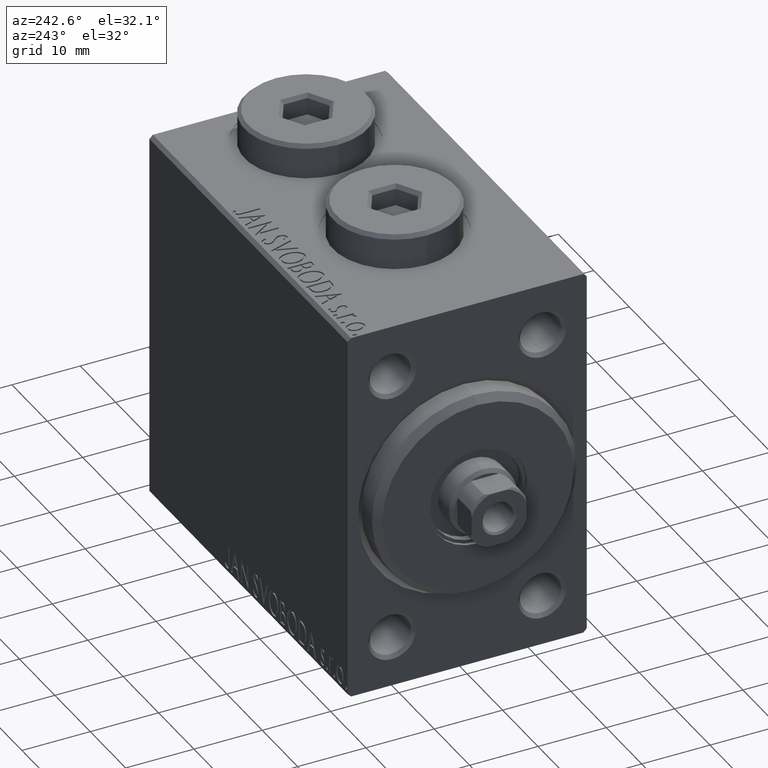
[diagram: clean part render]
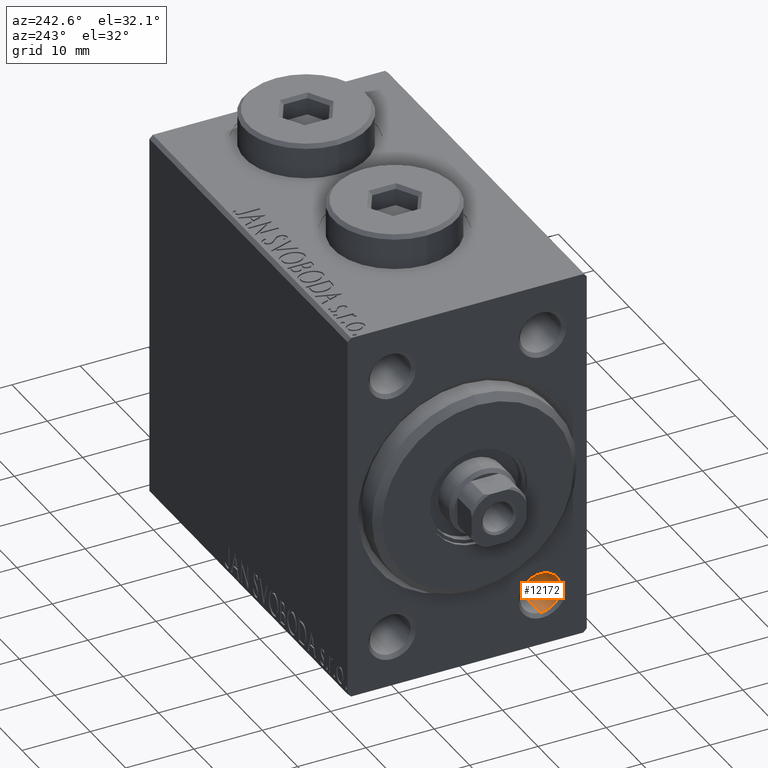
[diagram: same view with one face highlighted and labeled with its STEP entity id]
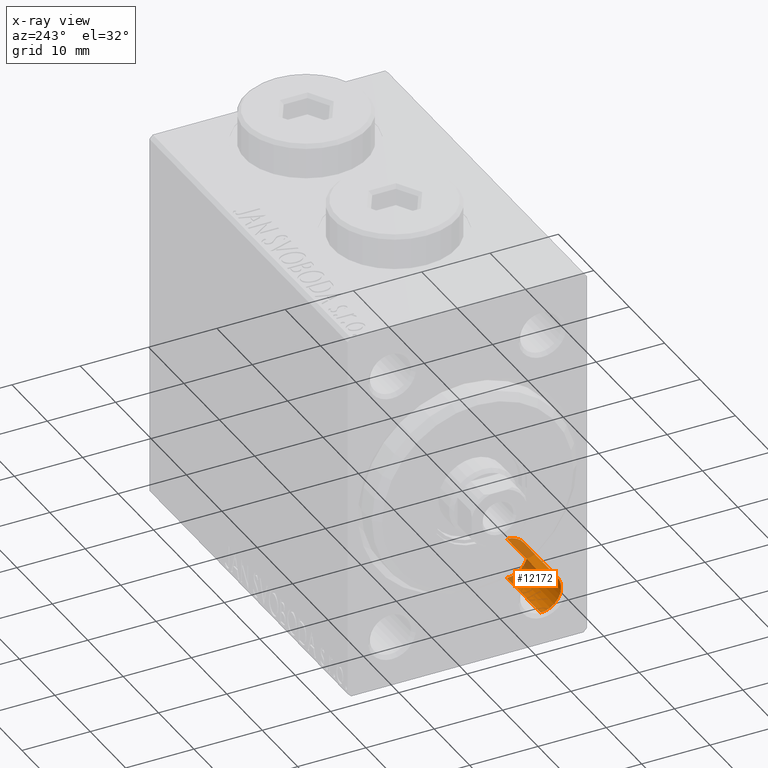
[diagram: x-ray of the same camera — body ghosted, the highlighted face saturated]
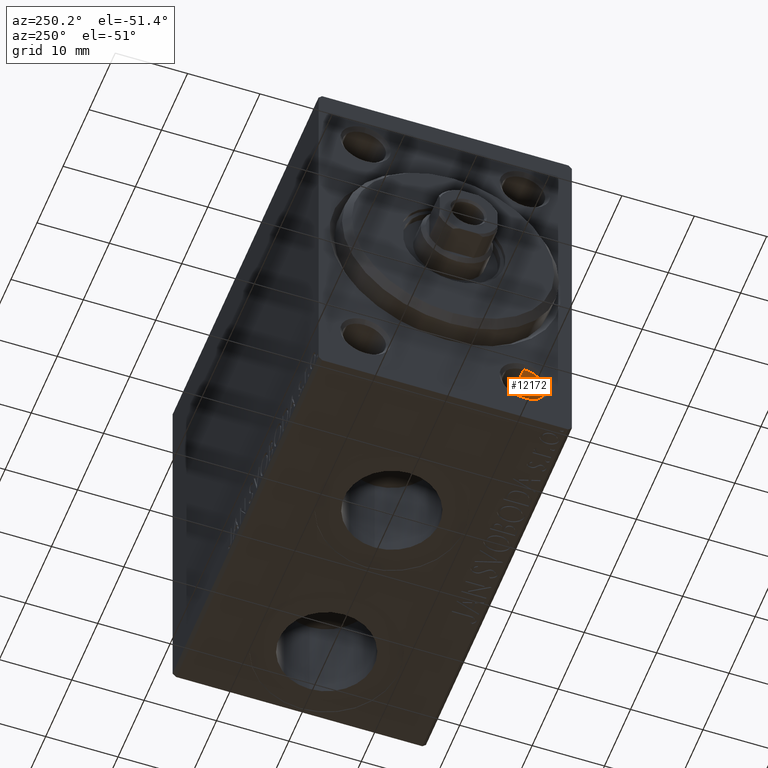
[diagram: same view with one face highlighted and labeled with its STEP entity id]
A machine part, auxiliary view. The second image highlights one B-rep face of the part: STEP entity #12172.
The next image is the same camera in x-ray: the body ghosted, the highlighted face saturated — about 30% of this face is hidden behind the body in this view.
A second angle (auxiliary view) of the same face is appended — the face is thin or edge-on in the first view.
In plain terms, the highlighted cylindrical surface (edge-blend (fillet) strip) has radius 3 mm, axis along (-1, -0, -0).
Its self-contained STEP definition (entity closure, byte-faithful):
#1891 = DIRECTION ( 'NONE',  ( -1.000000000000000000, -0.000000000000000000, -0.000000000000000000 ) ) ;
#5229 = CARTESIAN_POINT ( 'NONE',  ( 0.5000000000000095479, -11.00000000000000533, -17.00000000000001066 ) ) ;
#5883 = CARTESIAN_POINT ( 'NONE',  ( 0.000000000000000000, -11.00000000000000533, -17.00000000000001066 ) ) ;
#6317 = CARTESIAN_POINT ( 'NONE',  ( 0.000000000000000000, -11.00000000000000533, -20.00000000000000000 ) ) ;
#6545 = CYLINDRICAL_SURFACE ( 'NONE', #14955, 2.999999999999988898 ) ;
#7016 = AXIS2_PLACEMENT_3D ( 'NONE', #39713, #28651, #36024 ) ;
#7917 = ORIENTED_EDGE ( 'NONE', *, *, #28107, .F. ) ;
#12172 = ADVANCED_FACE ( 'NONE', ( #17118 ), #6545, .F. ) ;
#12472 = CARTESIAN_POINT ( 'NONE',  ( 0.000000000000000000, -11.00000000000000533, -22.99999999999998934 ) ) ;
#12988 = CARTESIAN_POINT ( 'NONE',  ( 0.5000000000000095479, -11.00000000000000533, -20.00000000000000000 ) ) ;
#13215 = DIRECTION ( 'NONE',  ( -1.000000000000000000, 0.000000000000000000, 0.000000000000000000 ) ) ;
#14955 = AXIS2_PLACEMENT_3D ( 'NONE', #6317, #44535, #20561 ) ;
#17118 = FACE_OUTER_BOUND ( 'NONE', #28963, .T. ) ;
#20269 = CARTESIAN_POINT ( 'NONE',  ( 0.5000000000000095479, -11.00000000000000533, -22.99999999999998934 ) ) ;
#20561 = DIRECTION ( 'NONE',  ( 0.000000000000000000, 0.000000000000000000, 1.000000000000000000 ) ) ;
#20577 = DIRECTION ( 'NONE',  ( -1.000000000000000000, -0.000000000000000000, -0.000000000000000000 ) ) ;
#21834 = VERTEX_POINT ( 'NONE', #32302 ) ;
#23450 = EDGE_CURVE ( 'NONE', #36069, #38426, #36419, .T. ) ;
#25220 = ORIENTED_EDGE ( 'NONE', *, *, #25341, .T. ) ;
#25341 = EDGE_CURVE ( 'NONE', #38426, #33052, #32634, .T. ) ;
#28107 = EDGE_CURVE ( 'NONE', #21834, #33052, #37414, .T. ) ;
#28651 = DIRECTION ( 'NONE',  ( -1.000000000000000000, -0.000000000000000000, -0.000000000000000000 ) ) ;
#28963 = EDGE_LOOP ( 'NONE', ( #37594, #35626, #25220, #7917 ) ) ;
#30427 = AXIS2_PLACEMENT_3D ( 'NONE', #12988, #13215, #40839 ) ;
#32144 = VECTOR ( 'NONE', #1891, 1000.000000000000000 ) ;
#32302 = CARTESIAN_POINT ( 'NONE',  ( 9.999999999999994671, -11.00000000000000533, -17.00000000000001066 ) ) ;
#32634 = CIRCLE ( 'NONE', #30427, 2.999999999999988898 ) ;
#33052 = VERTEX_POINT ( 'NONE', #5229 ) ;
#33202 = EDGE_CURVE ( 'NONE', #36069, #21834, #39356, .T. ) ;
#34055 = VECTOR ( 'NONE', #20577, 1000.000000000000000 ) ;
#34467 = CARTESIAN_POINT ( 'NONE',  ( 9.999999999999994671, -11.00000000000000533, -22.99999999999998934 ) ) ;
#35626 = ORIENTED_EDGE ( 'NONE', *, *, #23450, .T. ) ;
#36024 = DIRECTION ( 'NONE',  ( 0.000000000000000000, 0.000000000000000000, 1.000000000000000000 ) ) ;
#36069 = VERTEX_POINT ( 'NONE', #34467 ) ;
#36419 = LINE ( 'NONE', #12472, #32144 ) ;
#37414 = LINE ( 'NONE', #5883, #34055 ) ;
#37594 = ORIENTED_EDGE ( 'NONE', *, *, #33202, .F. ) ;
#38426 = VERTEX_POINT ( 'NONE', #20269 ) ;
#39356 = CIRCLE ( 'NONE', #7016, 2.999999999999988898 ) ;
#39713 = CARTESIAN_POINT ( 'NONE',  ( 9.999999999999994671, -11.00000000000000533, -20.00000000000000000 ) ) ;
#40839 = DIRECTION ( 'NONE',  ( 0.000000000000000000, 0.000000000000000000, -1.000000000000000000 ) ) ;
#44535 = DIRECTION ( 'NONE',  ( -1.000000000000000000, -0.000000000000000000, -0.000000000000000000 ) ) ;